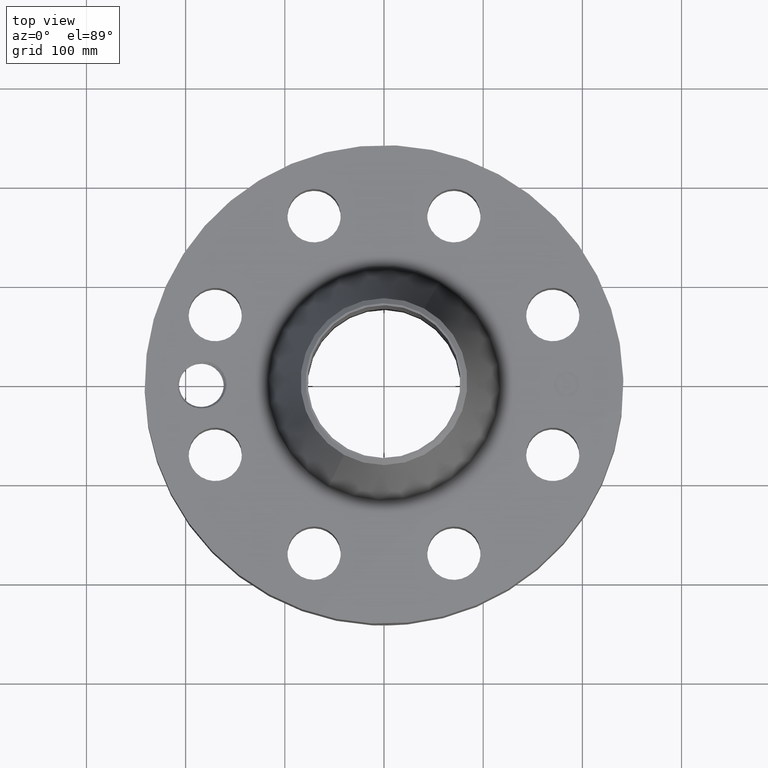
[diagram: clean part render]
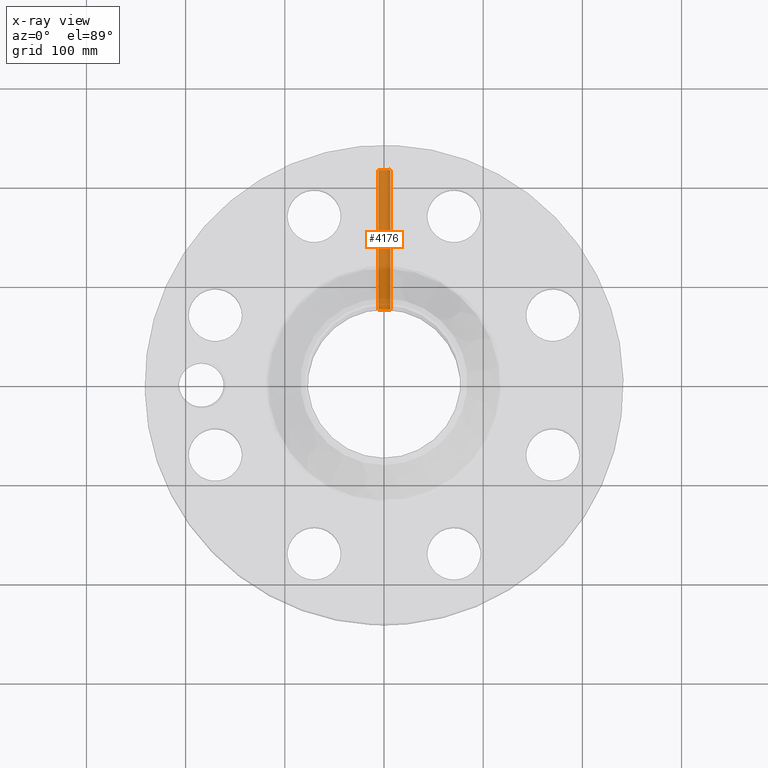
[diagram: x-ray — body ghosted, one internal face saturated and labeled with its STEP entity id]
A machine part, top view, then the same camera in x-ray: the body is ghosted and one INTERNAL B-rep face — a face not visible from any outside direction — is saturated and labeled: STEP entity #4176.
In plain terms, the highlighted cylindrical surface (edge-blend (fillet) strip) has radius 6.35 mm, axis along (-0, -1, 0).
Its self-contained STEP definition (entity closure, byte-faithful):
#4149=AXIS2_PLACEMENT_3D('Cylinder Axis2P3D',#4146,#4147,#4148) ;
#4160=AXIS2_PLACEMENT_3D('Circle Axis2P3D',#4158,#4159,$) ;
#2987=CARTESIAN_POINT('Vertex',(0.219395640473,3.02455315758,1.05985638466)) ;
#2989=CARTESIAN_POINT('Vertex',(-0.219395640473,3.02455315758,0.820143615352)) ;
#2993=CARTESIAN_POINT('Control Point',(-0.219395640473,3.02455315758,0.820143615352)) ;
#2994=CARTESIAN_POINT('Control Point',(-0.206922263259,3.0254579539,0.797311251513)) ;
#2995=CARTESIAN_POINT('Control Point',(-0.191481219769,3.02651338018,0.776106121776)) ;
#2996=CARTESIAN_POINT('Control Point',(-0.17335290928,3.02763770348,0.75703840677)) ;
#2997=CARTESIAN_POINT('Control Point',(-0.112190548405,3.03088722865,0.707588933531)) ;
#2998=CARTESIAN_POINT('Control Point',(-0.0350754877789,3.03299839928,0.68404857668)) ;
#2999=CARTESIAN_POINT('Control Point',(0.0194612464907,3.0331580368,0.682387747522)) ;
#3000=CARTESIAN_POINT('Control Point',(0.124017328645,3.03084011998,0.707479192398)) ;
#3001=CARTESIAN_POINT('Control Point',(0.20304453827,3.02603181156,0.780275435378)) ;
#3002=CARTESIAN_POINT('Control Point',(0.232052740187,3.02365897928,0.826424542018)) ;
#3003=CARTESIAN_POINT('Control Point',(0.255813742483,3.02169783614,0.904606241812)) ;
#3004=CARTESIAN_POINT('Control Point',(0.248329979717,3.02231494673,0.984059160685)) ;
#3005=CARTESIAN_POINT('Control Point',(0.242095077611,3.02283692028,1.01069738356)) ;
#3006=CARTESIAN_POINT('Control Point',(0.23234448006,3.02361387207,1.03615369278)) ;
#3007=CARTESIAN_POINT('Control Point',(0.219395640473,3.02455315758,1.05985638466)) ;
#4146=CARTESIAN_POINT('Axis2P3D Location',(6.71306641262E-015,9.49606299216,0.940000000004)) ;
#4151=CARTESIAN_POINT('Line Origine',(0.219395640473,5.79844516519,1.05985638466)) ;
#4155=CARTESIAN_POINT('Vertex',(0.219395640473,8.57538540465,1.05985638466)) ;
#4158=CARTESIAN_POINT('Axis2P3D Location',(6.54394068353E-015,8.57538540465,0.940000000004)) ;
#4162=CARTESIAN_POINT('Vertex',(-0.219395640473,8.57538540465,0.820143615352)) ;
#4165=CARTESIAN_POINT('Line Origine',(-0.219395640473,5.79844516519,0.820143615352)) ;
#4147=DIRECTION('Axis2P3D Direction',(-7.2321661367E-018,-0.0393700787402,0.)) ;
#4148=DIRECTION('Axis2P3D XDirection',(0.0345504945626,-6.34682288626E-018,0.0188750212049)) ;
#4152=DIRECTION('Vector Direction',(-7.18843337816E-018,-0.0393700787402,0.)) ;
#4159=DIRECTION('Axis2P3D Direction',(-7.2321661367E-018,-0.0393700787402,0.)) ;
#4166=DIRECTION('Vector Direction',(-7.18843337816E-018,-0.0393700787402,0.)) ;
#4153=VECTOR('Line Direction',#4152,0.0393700787402) ;
#4167=VECTOR('Line Direction',#4166,0.0393700787402) ;
#4171=ORIENTED_EDGE('',*,*,#3008,.T.) ;
#4172=ORIENTED_EDGE('',*,*,#4157,.T.) ;
#4173=ORIENTED_EDGE('',*,*,#4164,.F.) ;
#4174=ORIENTED_EDGE('',*,*,#4169,.F.) ;
#4176=ADVANCED_FACE('PartBody',(#4175),#4150,.F.) ;
#2992=B_SPLINE_CURVE_WITH_KNOTS('',5,(#2993,#2994,#2995,#2996,#2997,#2998,#2999,#3000,#3001,#3002,#3003,#3004,#3005,#3006,#3007),.UNSPECIFIED.,.F.,.U.,(6,3,3,3,6),(0.,4.6756723808,14.020164147,23.3700567068,28.2239571843),.UNSPECIFIED.) ;
#4161=CIRCLE('generated circle',#4160,0.250000000001) ;
#4150=CYLINDRICAL_SURFACE('generated cylinder',#4149,0.250000000001) ;
#3008=EDGE_CURVE('',#2990,#2988,#2992,.T.) ;
#4157=EDGE_CURVE('',#2988,#4156,#4154,.F.) ;
#4164=EDGE_CURVE('',#4163,#4156,#4161,.T.) ;
#4169=EDGE_CURVE('',#2990,#4163,#4168,.F.) ;
#4170=EDGE_LOOP('',(#4171,#4172,#4173,#4174)) ;
#4175=FACE_OUTER_BOUND('',#4170,.T.) ;
#4154=LINE('Line',#4151,#4153) ;
#4168=LINE('Line',#4165,#4167) ;
#2988=VERTEX_POINT('',#2987) ;
#2990=VERTEX_POINT('',#2989) ;
#4156=VERTEX_POINT('',#4155) ;
#4163=VERTEX_POINT('',#4162) ;